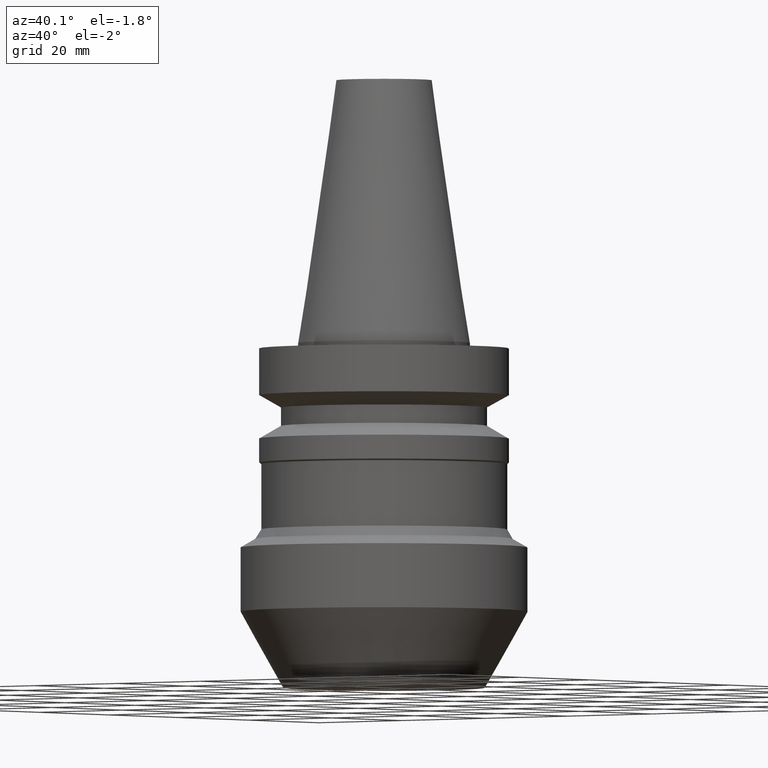
[diagram: clean part render]
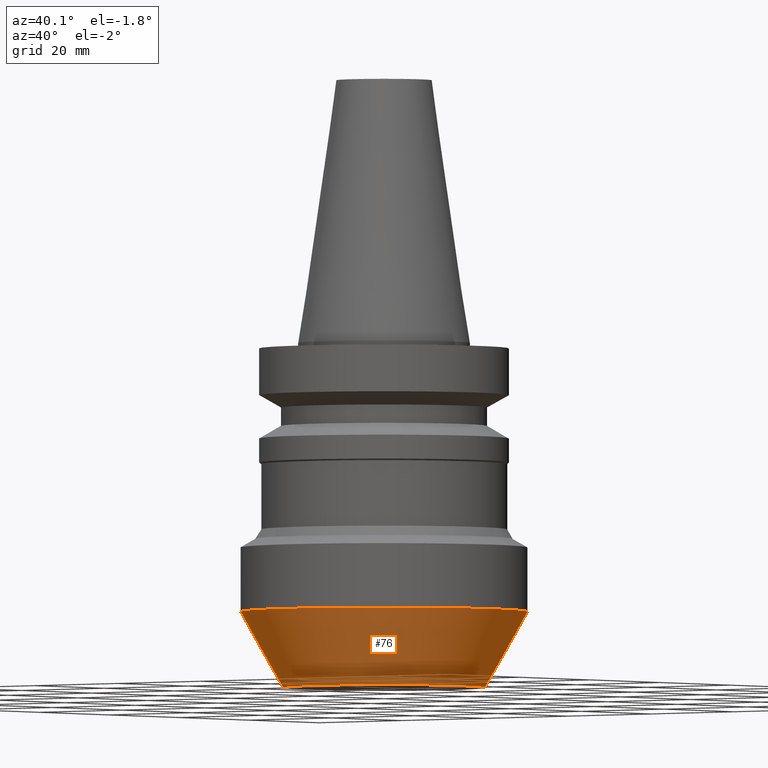
[diagram: same view with one face highlighted and labeled with its STEP entity id]
A machine part, auxiliary view. The second image highlights one B-rep face of the part: STEP entity #76.
In plain terms, the highlighted conical surface has half-angle 29.419 deg.
Its self-contained STEP definition (entity closure, byte-faithful):
#76=ADVANCED_FACE('Unnamed[1]',(#184,#185),#186,.T.);
#124=EDGE_CURVE('Unnamed[1]',#258,#258,#259,.T.);
#126=EDGE_CURVE('Unnamed[1]',#261,#261,#262,.T.);
#184=FACE_BOUND('',#324,.T.);
#185=FACE_BOUND('',#325,.T.);
#186=CONICAL_SURFACE('',#326,22.5526304238404,0.513462245776188);
#258=VERTEX_POINT('',#417);
#259=CIRCLE('',#418,26.5);
#261=VERTEX_POINT('',#421);
#262=CIRCLE('',#422,18.6052608476809);
#324=EDGE_LOOP('',(#478));
#325=EDGE_LOOP('',(#479));
#326=AXIS2_PLACEMENT_3D('',#480,#481,#482);
#417=CARTESIAN_POINT('',(3.03100559411479E-015,26.5,-49.5000778383628));
#418=AXIS2_PLACEMENT_3D('',#558,#559,#560);
#421=CARTESIAN_POINT('',(3.88825358729284E-015,18.6052608476809,-63.5));
#422=AXIS2_PLACEMENT_3D('',#561,#562,#563);
#478=ORIENTED_EDGE('',*,*,#126,.F.);
#479=ORIENTED_EDGE('',*,*,#124,.T.);
#480=CARTESIAN_POINT('',(3.45962959070382E-015,6.91925918140763E-015,-56.5000389191814));
#481=DIRECTION('',(-6.12323399573677E-017,-1.22464679914735E-016,1.0));
#482=DIRECTION('',(-1.23259516440783E-032,1.0,1.22464679914735E-016));
#558=CARTESIAN_POINT('',(3.03100559411479E-015,6.06201118822958E-015,-49.5000778383628));
#559=DIRECTION('',(6.12323399573677E-017,1.22464679914735E-016,-1.0));
#560=DIRECTION('',(-1.23259516440783E-032,1.0,1.22464679914735E-016));
#561=CARTESIAN_POINT('',(3.88825358729284E-015,7.77650717458569E-015,-63.5));
#562=DIRECTION('',(6.12323399573677E-017,1.22464679914735E-016,-1.0));
#563=DIRECTION('',(-1.23259516440783E-032,1.0,1.22464679914735E-016));